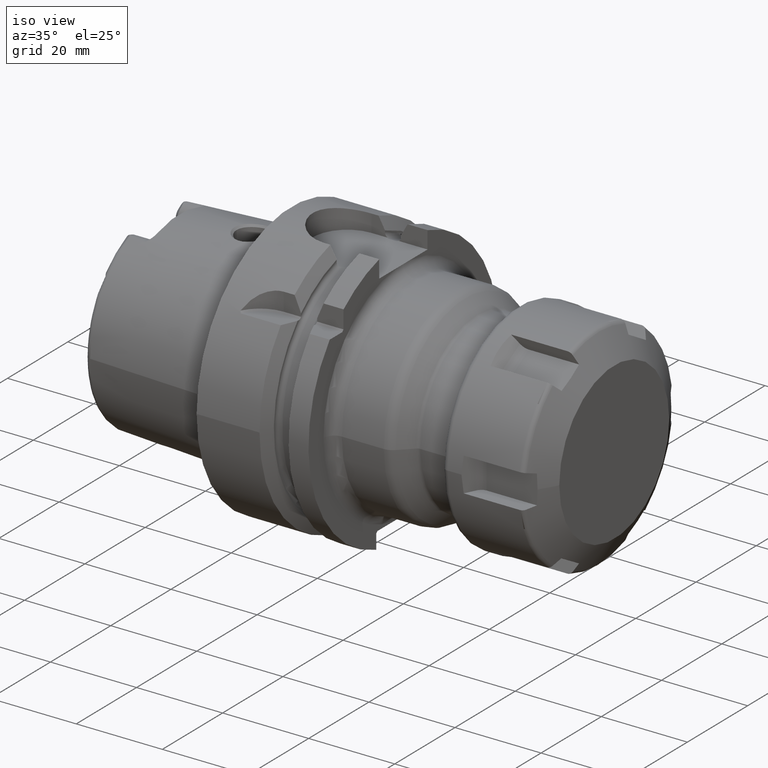
[diagram: clean part render]
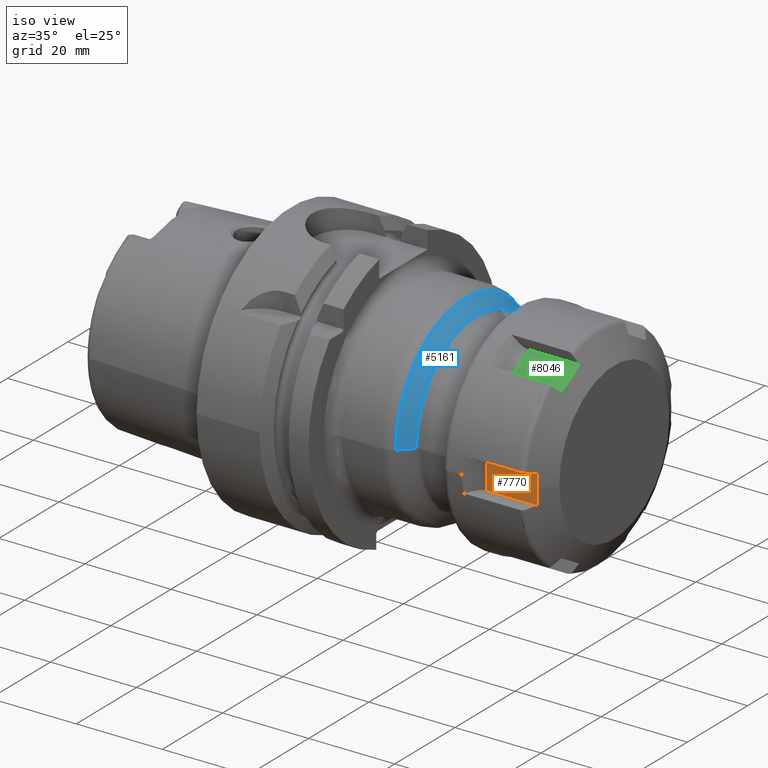
[diagram: same view with three faces highlighted in distinct colors, each labeled with its STEP entity id]
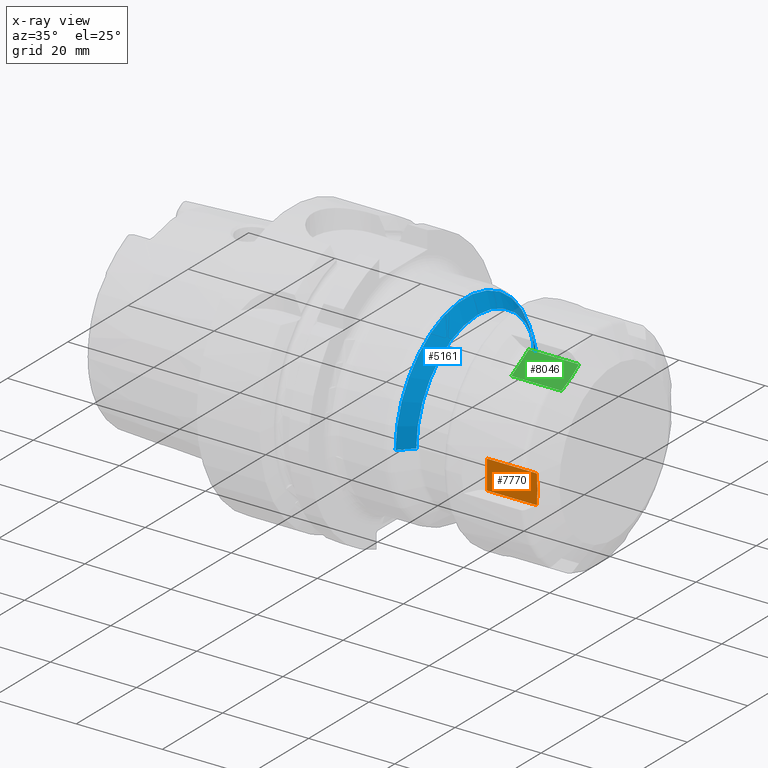
[diagram: x-ray of the same camera — body ghosted, the three highlighted faces saturated]
A machine part, iso view with three faces highlighted in distinct colors.
The next image is the same camera in x-ray (body ghosted, the three faces saturated) — at least one of them is partly hidden behind the body in this view.
Their STEP definitions:

[orange] entity #7770 — the highlighted planar face has unit normal (0, 1, 0).
#6678=CARTESIAN_POINT('',(2.007435737753E1,-2.22E1,-3.35E0));
#6684=CARTESIAN_POINT('',(2.021946643670E1,-2.22E1,-4.505137681520E-14));
#6685=CARTESIAN_POINT('',(2.021946643670E1,-2.22E1,-3.723412104007E-1));
#6686=CARTESIAN_POINT('',(2.020864224929E1,-2.22E1,-1.116942255784E0));
#6687=CARTESIAN_POINT('',(2.016008769471E1,-2.22E1,-2.233495806650E0));
#6688=CARTESIAN_POINT('',(2.010641792581E1,-2.22E1,-2.977840628173E0));
#6689=CARTESIAN_POINT('',(2.007435737753E1,-2.22E1,-3.35E0));
#6984=CARTESIAN_POINT('',(2.007435737753E1,-2.22E1,3.35E0));
#6985=CARTESIAN_POINT('',(2.010642291935E1,-2.22E1,2.977782663007E0));
#6986=CARTESIAN_POINT('',(2.016009585532E1,-2.22E1,2.233360618265E0));
#6987=CARTESIAN_POINT('',(2.020864465134E1,-2.22E1,1.116836975823E0));
#6988=CARTESIAN_POINT('',(2.021946643670E1,-2.22E1,3.722962341463E-1));
#6989=CARTESIAN_POINT('',(2.021946643670E1,-2.22E1,-4.505137681520E-14));
#7068=DIRECTION('',(0.E0,0.E0,1.E0));
#7069=VECTOR('',#7068,6.7E0);
#7070=CARTESIAN_POINT('',(8.408376618407E0,-2.22E1,-3.35E0));
#7071=LINE('',#7070,#7069);
#7072=DIRECTION('',(-1.E0,0.E0,0.E0));
#7073=VECTOR('',#7072,1.166598075912E1);
#7074=CARTESIAN_POINT('',(2.007435737753E1,-2.22E1,-3.35E0));
#7075=LINE('',#7074,#7073);
#7080=CARTESIAN_POINT('',(8.408376618407E0,-2.22E1,3.35E0));
#7086=DIRECTION('',(-1.E0,0.E0,0.E0));
#7087=VECTOR('',#7086,1.166598075912E1);
#7088=CARTESIAN_POINT('',(2.007435737753E1,-2.22E1,3.35E0));
#7089=LINE('',#7088,#7087);
#7384=VERTEX_POINT('',#6984);
#7385=VERTEX_POINT('',#6989);
#7387=VERTEX_POINT('',#6678);
#7396=VERTEX_POINT('',#7080);
#7397=CARTESIAN_POINT('',(8.408376618407E0,-2.22E1,-3.35E0));
#7398=VERTEX_POINT('',#7397);
#7755=CARTESIAN_POINT('',(2.25E1,-2.22E1,-3.35E0));
#7756=DIRECTION('',(0.E0,1.E0,0.E0));
#7757=DIRECTION('',(0.E0,0.E0,1.E0));
#7758=AXIS2_PLACEMENT_3D('',#7755,#7756,#7757);
#7759=PLANE('',#7758);
#7761=ORIENTED_EDGE('',*,*,#7760,.T.);
#7763=ORIENTED_EDGE('',*,*,#7762,.F.);
#7764=ORIENTED_EDGE('',*,*,#7728,.T.);
#7765=ORIENTED_EDGE('',*,*,#7469,.T.);
#7767=ORIENTED_EDGE('',*,*,#7766,.T.);
#7768=EDGE_LOOP('',(#7761,#7763,#7764,#7765,#7767));
#7769=FACE_OUTER_BOUND('',#7768,.F.);
#7770=ADVANCED_FACE('',(#7769),#7759,.F.);
#6690=B_SPLINE_CURVE_WITH_KNOTS('',3,(#6684,#6685,#6686,#6687,#6688,#6689),
.UNSPECIFIED.,.F.,.F.,(4,1,1,4),(0.E0,3.333333333333E-1,6.666666666667E-1,1.E0),
.UNSPECIFIED.);
#6990=B_SPLINE_CURVE_WITH_KNOTS('',3,(#6984,#6985,#6986,#6987,#6988,#6989),
.UNSPECIFIED.,.F.,.F.,(4,1,1,4),(0.E0,3.333333333333E-1,6.666666666667E-1,1.E0),
.UNSPECIFIED.);
#7469=EDGE_CURVE('',#7385,#7387,#6690,.T.);
#7728=EDGE_CURVE('',#7384,#7385,#6990,.T.);
#7760=EDGE_CURVE('',#7398,#7396,#7071,.T.);
#7762=EDGE_CURVE('',#7384,#7396,#7089,.T.);
#7766=EDGE_CURVE('',#7387,#7398,#7075,.T.);

[blue] entity #5161 — the highlighted conical surface has half-angle 45 deg.
#1867=DIRECTION('',(-7.071067811865E-1,-7.071067811865E-1,-4.271956565782E-13));
#1868=VECTOR('',#1867,4.E0);
#1869=CARTESIAN_POINT('',(4.320710678119E1,-2.029289321881E1,
5.268729045794E-13));
#1870=LINE('',#1869,#1868);
#1876=DIRECTION('',(-7.071067811865E-1,7.071067811865E-1,4.266837915698E-13));
#1877=VECTOR('',#1876,4.E0);
#1878=CARTESIAN_POINT('',(4.320710678119E1,2.029289321881E1,
-5.296972940620E-13));
#1879=LINE('',#1878,#1877);
#1880=CARTESIAN_POINT('',(4.037867965644E1,0.E0,0.E0));
#1881=DIRECTION('',(-1.E0,0.E0,0.E0));
#1882=DIRECTION('',(0.E0,-1.E0,0.E0));
#1883=AXIS2_PLACEMENT_3D('',#1880,#1881,#1882);
#1885=CARTESIAN_POINT('',(4.320710678119E1,0.E0,0.E0));
#1886=DIRECTION('',(1.E0,0.E0,0.E0));
#1887=DIRECTION('',(0.E0,1.E0,0.E0));
#1888=AXIS2_PLACEMENT_3D('',#1885,#1886,#1887);
#3167=CARTESIAN_POINT('',(4.320710678119E1,-2.029289321881E1,0.E0));
#3168=CARTESIAN_POINT('',(4.320710678119E1,2.029289321881E1,0.E0));
#3169=VERTEX_POINT('',#3167);
#3170=VERTEX_POINT('',#3168);
#3183=CARTESIAN_POINT('',(4.037867965644E1,2.312132034356E1,0.E0));
#3184=CARTESIAN_POINT('',(4.037867965644E1,-2.312132034356E1,0.E0));
#3185=VERTEX_POINT('',#3183);
#3186=VERTEX_POINT('',#3184);
#5149=CARTESIAN_POINT('',(4.179289321881E1,0.E0,0.E0));
#5150=DIRECTION('',(-1.E0,0.E0,0.E0));
#5151=DIRECTION('',(0.E0,1.E0,0.E0));
#5152=AXIS2_PLACEMENT_3D('',#5149,#5150,#5151);
#5153=CONICAL_SURFACE('',#5152,2.170710678119E1,4.5E1);
#5154=ORIENTED_EDGE('',*,*,#5101,.T.);
#5155=ORIENTED_EDGE('',*,*,#5144,.F.);
#5157=ORIENTED_EDGE('',*,*,#5156,.T.);
#5158=ORIENTED_EDGE('',*,*,#5140,.T.);
#5159=EDGE_LOOP('',(#5154,#5155,#5157,#5158));
#5160=FACE_OUTER_BOUND('',#5159,.F.);
#5161=ADVANCED_FACE('',(#5160),#5153,.T.);
#1884=CIRCLE('',#1883,2.312132034356E1);
#1889=CIRCLE('',#1888,2.029289321881E1);
#5101=EDGE_CURVE('',#3186,#3185,#1884,.T.);
#5140=EDGE_CURVE('',#3169,#3186,#1870,.T.);
#5144=EDGE_CURVE('',#3170,#3185,#1879,.T.);
#5156=EDGE_CURVE('',#3170,#3169,#1889,.T.);

[green] entity #8046 — the highlighted planar face has unit normal (0, 0.5, -0.866).
#7002=CARTESIAN_POINT('',(2.007435737753E1,-1.400118510268E1,1.755076396401E1));
#7008=CARTESIAN_POINT('',(2.007435737753E1,-8.198814897322E0,2.090076396401E1));
#7009=CARTESIAN_POINT('',(2.013850261850E1,-8.843656557694E0,2.052846445781E1));
#7010=CARTESIAN_POINT('',(2.022485531472E1,-1.013317723897E1,1.978395934535E1));
#7011=CARTESIAN_POINT('',(2.022485360844E1,-1.206686210227E1,1.866754586900E1));
#7012=CARTESIAN_POINT('',(2.013850094754E1,-1.335636024026E1,1.792305377191E1));
#7013=CARTESIAN_POINT('',(2.007435737753E1,-1.400118510268E1,1.755076396401E1));
#7250=CARTESIAN_POINT('',(8.408376618407E0,-8.198814897322E0,2.090076396401E1));
#7256=DIRECTION('',(-1.E0,0.E0,0.E0));
#7257=VECTOR('',#7256,1.166598075912E1);
#7258=CARTESIAN_POINT('',(2.007435737753E1,-8.198814897322E0,2.090076396401E1));
#7259=LINE('',#7258,#7257);
#7260=DIRECTION('',(0.E0,8.660254037844E-1,5.E-1));
#7261=VECTOR('',#7260,6.7E0);
#7262=CARTESIAN_POINT('',(8.408376618407E0,-1.400118510268E1,1.755076396401E1));
#7263=LINE('',#7262,#7261);
#7264=DIRECTION('',(-1.E0,0.E0,0.E0));
#7265=VECTOR('',#7264,1.166598075912E1);
#7266=CARTESIAN_POINT('',(2.007435737753E1,-1.400118510268E1,1.755076396401E1));
#7267=LINE('',#7266,#7265);
#7369=VERTEX_POINT('',#7002);
#7371=VERTEX_POINT('',#7008);
#7380=VERTEX_POINT('',#7250);
#7381=CARTESIAN_POINT('',(8.408376618407E0,-1.400118510268E1,1.755076396401E1));
#7382=VERTEX_POINT('',#7381);
#8034=CARTESIAN_POINT('',(2.25E1,-1.400118510268E1,1.755076396401E1));
#8035=DIRECTION('',(0.E0,5.E-1,-8.660254037844E-1));
#8036=DIRECTION('',(0.E0,8.660254037844E-1,5.E-1));
#8037=AXIS2_PLACEMENT_3D('',#8034,#8035,#8036);
#8038=PLANE('',#8037);
#8039=ORIENTED_EDGE('',*,*,#8025,.T.);
#8040=ORIENTED_EDGE('',*,*,#8014,.F.);
#8041=ORIENTED_EDGE('',*,*,#7735,.T.);
#8043=ORIENTED_EDGE('',*,*,#8042,.T.);
#8044=EDGE_LOOP('',(#8039,#8040,#8041,#8043));
#8045=FACE_OUTER_BOUND('',#8044,.F.);
#8046=ADVANCED_FACE('',(#8045),#8038,.F.);
#7014=B_SPLINE_CURVE_WITH_KNOTS('',3,(#7008,#7009,#7010,#7011,#7012,#7013),
.UNSPECIFIED.,.F.,.F.,(4,1,1,4),(0.E0,3.333333333333E-1,6.666666666667E-1,1.E0),
.UNSPECIFIED.);
#7735=EDGE_CURVE('',#7371,#7369,#7014,.T.);
#8014=EDGE_CURVE('',#7371,#7380,#7259,.T.);
#8025=EDGE_CURVE('',#7382,#7380,#7263,.T.);
#8042=EDGE_CURVE('',#7369,#7382,#7267,.T.);